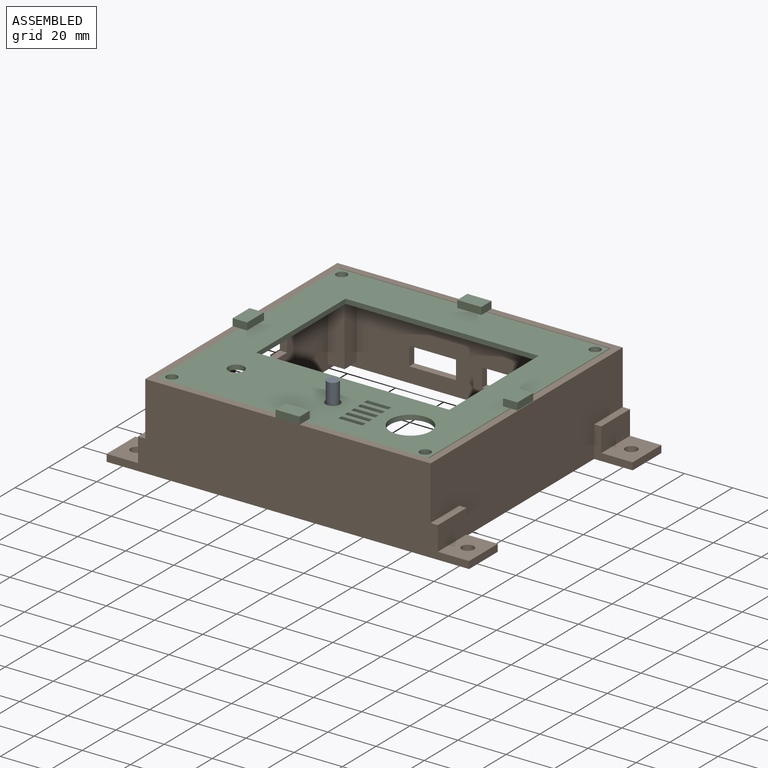
[diagram: assembled view]
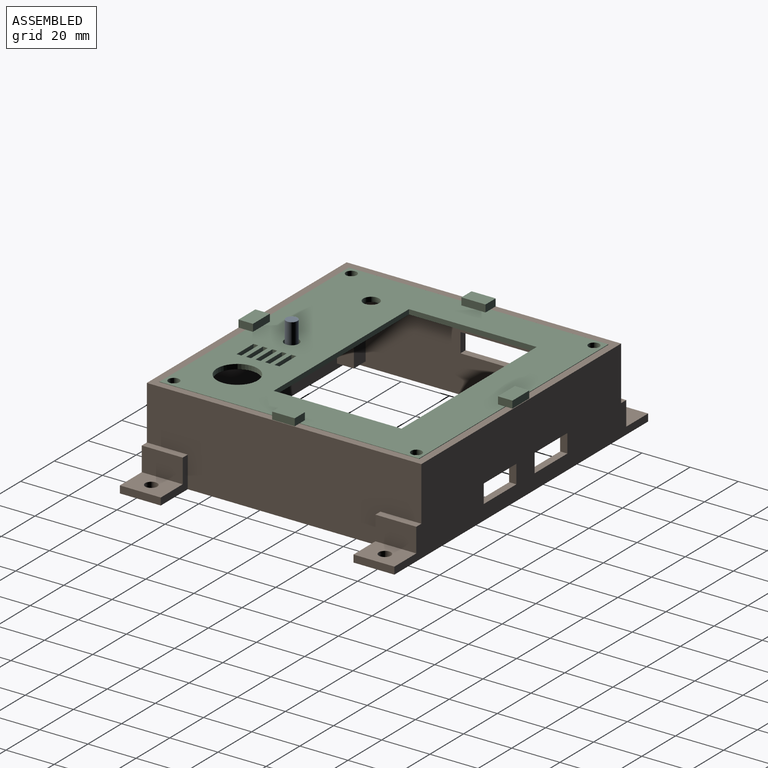
[diagram: assembled view, second angle]
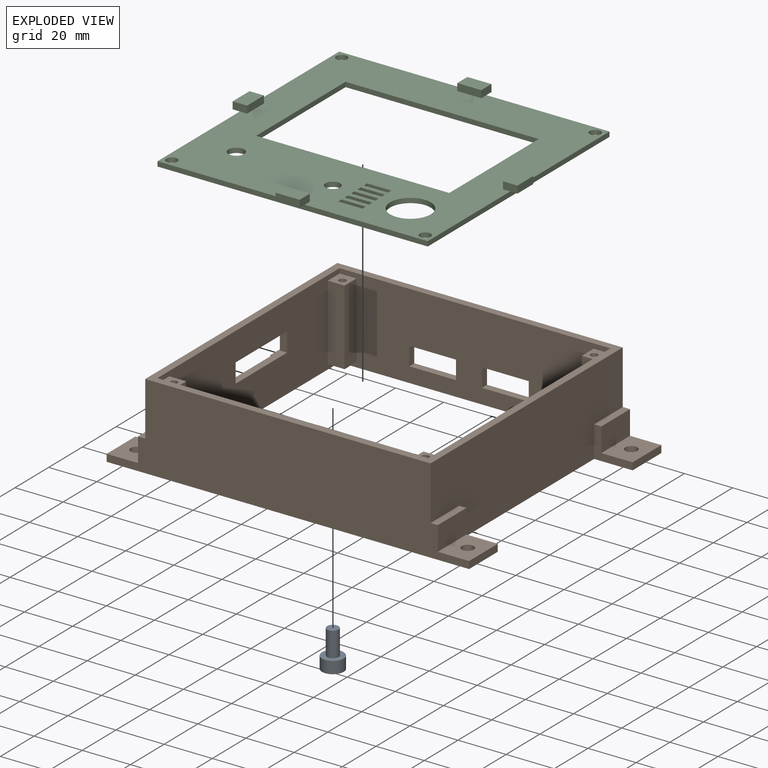
[diagram: exploded view]
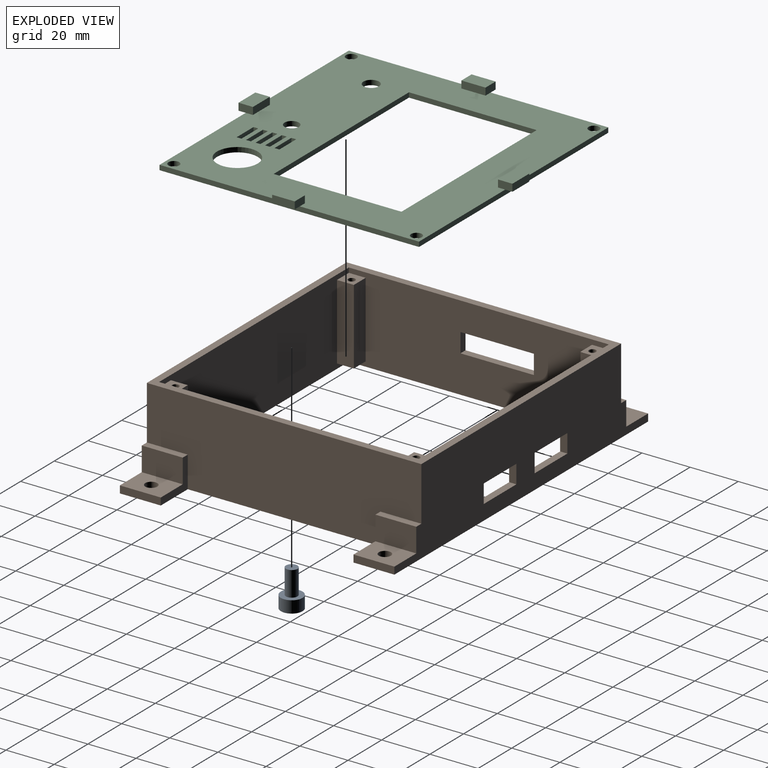
[diagram: exploded view, second angle]
ASSEMBLY  parts=3 mates=2
PART A: 7 faces, bbox 9x9x15.4 mm
  f0: cylinder r=2.4mm len=10.36mm, axis (0,0,-1), area 156.2mm2, adj f1,f4
  f1: plane 4.8x4.8mm, normal (0,0,1), area 18.1mm2, adj f0
  f2: cylinder r=4.5mm len=9mm, axis (0,0,1), area 141.4mm2, adj f3,f4
  f3: plane 9x9mm, normal (0,0,-1), area 35.3mm2, adj f2,f5
  f4: plane 9x9mm, normal (0,0,1), area 45.5mm2, adj f0,f2
  f5: cylinder r=3mm len=6mm, axis (0,0,-1), area 56.5mm2, adj f3,f6
  f6: plane 6x6mm, normal (0,0,-1), area 28.3mm2, adj f5
PART B: 66 faces, bbox 150.5x114x35.4 mm
  f0: plane 17x3mm, normal (1,0,0), area 51mm2, adj f1,f14,f57,f60
  f1: plane 150.5x114mm, normal (0,0,-1), area 2368.5mm2, adj f0,f5,f9,f10,f11,f12,f13,f14
  f2: plane 17x10mm, normal (1,0,0), area 170mm2, adj f3,f4,f15,f61
  f3: plane 17x3mm, normal (0,0,1), area 51mm2, adj f2,f9,f15,f61
  f4: plane 17x13mm, normal (0,0,1), area 201.4mm2, adj f2,f15,f56,f61,f64
  f5: plane 17x3mm, normal (-1,0,0), area 51mm2, adj f1,f8,f15,f59
  f6: plane 17x3mm, normal (0,0,1), area 51mm2, adj f7,f10,f15,f59
  f7: plane 17x10mm, normal (-1,0,0), area 170mm2, adj f6,f8,f15,f59
  f8: plane 17x13mm, normal (0,0,1), area 201.4mm2, adj f5,f7,f15,f59,f65
  f9: plane 114x35.36mm, normal (1,0,0), area 3589mm2, adj f1,f3,f14,f15,f17,f55,f60,f61
  f10: plane 114x35.36mm, normal (-1,0,0), area 3345mm2, adj f1,f6,f14,f15,f17,f38,f39,f40
  f11: plane 108x35.36mm, normal (1,0,0), area 3135.8mm2, adj f1,f12,f16,f17,f19,f20,f21,f31
  f12: plane 112.5x35.36mm, normal (0,-1,0), area 3240.2mm2, adj f1,f11,f13,f17,f18,f20,f21,f22
  f13: plane 108x35.36mm, normal (-1,0,0), area 3379.8mm2, adj f1,f12,f16,f17,f23,f24,f25,f27
  f14: plane 150.5x35.36mm, normal (0,1,0), area 4047.4mm2, adj f0,f1,f9,f10,f17,f42,f43,f44
  f15: plane 150.5x35.36mm, normal (0,-1,0), area 4346.2mm2, adj f1,f2,f3,f4,f5,f6,f7,f8
  f16: plane 112.5x35.36mm, normal (0,1,0), area 3539mm2, adj f1,f11,f13,f17,f26,f28,f29,f30
  f17: plane 118.5x114mm, normal (0,0,1), area 1359mm2, adj f9,f10,f11,f12,f13,f14,f15,f16
  f18: plane 31.36x7mm, normal (1,0,0), area 219.5mm2, adj f12,f19,f20,f21
  f19: plane 31.36x7mm, normal (0,-1,0), area 219.5mm2, adj f11,f18,f20,f21
  f20: plane 7x7mm, normal (0,0,-1), area 42.4mm2, adj f11,f12,f18,f19,f37
  f21: plane 7x7mm, normal (0,0,1), area 42.4mm2, adj f11,f12,f18,f19,f37
  f22: plane 31.36x7mm, normal (-1,0,0), area 219.5mm2, adj f12,f23,f24,f25
  f23: plane 31.36x7mm, normal (0,-1,0), area 219.5mm2, adj f13,f22,f24,f25
  f24: plane 7x7mm, normal (0,0,-1), area 42.4mm2, adj f12,f13,f22,f23,f36
  f25: plane 7x7mm, normal (0,0,1), area 42.4mm2, adj f12,f13,f22,f23,f36
  f26: plane 31.36x7mm, normal (-1,0,0), area 219.5mm2, adj f16,f27,f28,f29
  f27: plane 31.36x7mm, normal (0,1,0), area 219.5mm2, adj f13,f26,f28,f29
  f28: plane 7x7mm, normal (0,0,-1), area 42.4mm2, adj f13,f16,f26,f27,f35
  f29: plane 7x7mm, normal (0,0,1), area 42.4mm2, adj f13,f16,f26,f27,f35
  f30: plane 31.36x7mm, normal (1,0,0), area 219.5mm2, adj f16,f31,f32,f33
  f31: plane 31.36x7mm, normal (0,1,0), area 219.5mm2, adj f11,f30,f32,f33
  f32: plane 7x7mm, normal (0,0,-1), area 42.4mm2, adj f11,f16,f30,f31,f34
  f33: plane 7x7mm, normal (0,0,1), area 42.4mm2, adj f11,f16,f30,f31,f34
  f34: cylinder r=1.45mm len=31.36mm, axis (0,0,1), area 285.7mm2, adj f32,f33
  f35: cylinder r=1.45mm len=31.36mm, axis (0,0,1), area 285.7mm2, adj f28,f29
  f36: cylinder r=1.45mm len=31.36mm, axis (0,0,1), area 285.7mm2, adj f24,f25
  f37: cylinder r=1.45mm len=31.36mm, axis (0,0,1), area 285.7mm2, adj f20,f21
  f38: plane 30.51x3mm, normal (0,0,1), area 91.5mm2, adj f10,f11,f39,f40
  f39: plane 8x3mm, normal (0,-1,0), area 24mm2, adj f10,f11,f38,f41
  f40: plane 8x3mm, normal (0,1,0), area 24mm2, adj f10,f11,f38,f41
  f41: plane 30.51x3mm, normal (0,0,-1), area 91.5mm2, adj f10,f11,f39,f40
  f42: plane 7.7x3mm, normal (-1,0,0), area 23.1mm2, adj f12,f14,f43,f45
  f43: plane 19.4x3mm, normal (0,0,1), area 58.2mm2, adj f12,f14,f42,f44
  f44: plane 7.7x3mm, normal (1,0,0), area 23.1mm2, adj f12,f14,f43,f45
  f45: plane 19.4x3mm, normal (0,0,-1), area 58.2mm2, adj f12,f14,f42,f44
  f46: plane 7.7x3mm, normal (-1,0,0), area 23.1mm2, adj f12,f14,f47,f49
  f47: plane 19.4x3mm, normal (0,0,1), area 58.2mm2, adj f12,f14,f46,f48
  f48: plane 7.7x3mm, normal (1,0,0), area 23.1mm2, adj f12,f14,f47,f49
  f49: plane 19.4x3mm, normal (0,0,-1), area 58.2mm2, adj f12,f14,f46,f48
  f50: plane 17x3mm, normal (-1,0,0), area 51mm2, adj f1,f14,f53,f58
  f51: plane 17x3mm, normal (0,0,1), area 51mm2, adj f10,f14,f52,f58
  f52: plane 17x10mm, normal (-1,0,0), area 170mm2, adj f14,f51,f53,f58
  f53: plane 17x13mm, normal (0,0,1), area 201.4mm2, adj f14,f50,f52,f58,f62
  f54: plane 17x10mm, normal (1,0,0), area 170mm2, adj f14,f55,f57,f60
  f55: plane 17x3mm, normal (0,0,1), area 51mm2, adj f9,f14,f54,f60
  f56: plane 17x3mm, normal (1,0,0), area 51mm2, adj f1,f4,f15,f61
  f57: plane 17x13mm, normal (0,0,1), area 201.4mm2, adj f0,f14,f54,f60,f63
  f58: plane 16x13mm, normal (0,-1,0), area 78mm2, adj f1,f10,f50,f51,f52,f53
  f59: plane 16x13mm, normal (0,1,0), area 78mm2, adj f1,f5,f6,f7,f8,f10
  f60: plane 16x13mm, normal (0,-1,0), area 78mm2, adj f0,f1,f9,f54,f55,f57
  f61: plane 16x13mm, normal (0,1,0), area 78mm2, adj f1,f2,f3,f4,f9,f56
  f62: cylinder r=2.5mm len=5mm, axis (0,0,1), area 47.1mm2, adj f1,f53
  f63: cylinder r=2.5mm len=5mm, axis (0,0,1), area 47.1mm2, adj f1,f57
  f64: cylinder r=2.5mm len=5mm, axis (0,0,1), area 47.1mm2, adj f1,f4
  f65: cylinder r=2.5mm len=5mm, axis (0,0,1), area 47.1mm2, adj f1,f8
PART C: 61 faces, bbox 118.3x113.8x5 mm
  f0: plane 112.25x107.75mm, normal (0,0,1), area 7271.2mm2, adj f1,f2,f3,f4,f5,f6,f7,f8
  f1: plane 112.25x2mm, normal (0,1,0), area 224.5mm2, adj f0,f2,f35,f36,f54
  f2: plane 107.75x2mm, normal (-1,0,0), area 215.5mm2, adj f0,f1,f3,f36,f48
  f3: plane 112.25x2mm, normal (0,-1,0), area 224.5mm2, adj f0,f2,f35,f36,f55
  f4: plane 80.22x2mm, normal (0,1,0), area 160.4mm2, adj f0,f5,f22,f36
  f5: plane 53.05x2mm, normal (1,0,0), area 106.1mm2, adj f0,f4,f6,f36
  f6: plane 80.22x2mm, normal (0,-1,0), area 160.4mm2, adj f0,f5,f22,f36
  f7: plane 10x2mm, normal (0,1,0), area 20mm2, adj f0,f8,f23,f36
  f8: plane 2x2mm, normal (1,0,0), area 4mm2, adj f0,f7,f9,f36
  f9: plane 10x2mm, normal (0,-1,0), area 20mm2, adj f0,f8,f23,f36
  f10: plane 2x2mm, normal (1,0,0), area 4mm2, adj f0,f11,f24,f36
  f11: plane 10x2mm, normal (0,-1,0), area 20mm2, adj f0,f10,f12,f36
  f12: plane 2x2mm, normal (-1,0,0), area 4mm2, adj f0,f11,f24,f36
  f13: plane 2x2mm, normal (1,0,0), area 4mm2, adj f0,f14,f25,f36
  f14: plane 10x2mm, normal (0,-1,0), area 20mm2, adj f0,f13,f15,f36
  f15: plane 2x2mm, normal (-1,0,0), area 4mm2, adj f0,f14,f25,f36
  f16: plane 2x2mm, normal (1,0,0), area 4mm2, adj f0,f17,f26,f36
  f17: plane 10x2mm, normal (0,-1,0), area 20mm2, adj f0,f16,f18,f36
  f18: plane 2x2mm, normal (-1,0,0), area 4mm2, adj f0,f17,f26,f36
  f19: plane 2x2mm, normal (1,0,0), area 4mm2, adj f0,f20,f27,f36
  f20: plane 10x2mm, normal (0,-1,0), area 20mm2, adj f0,f19,f21,f36
  f21: plane 2x2mm, normal (-1,0,0), area 4mm2, adj f0,f20,f27,f36
  f22: plane 53.05x2mm, normal (-1,0,0), area 106.1mm2, adj f0,f4,f6,f36
  f23: plane 2x2mm, normal (-1,0,0), area 4mm2, adj f0,f7,f9,f36
  f24: plane 10x2mm, normal (0,1,0), area 20mm2, adj f0,f10,f12,f36
  f25: plane 10x2mm, normal (0,1,0), area 20mm2, adj f0,f13,f15,f36
  f26: plane 10x2mm, normal (0,1,0), area 20mm2, adj f0,f16,f18,f36
  f27: plane 10x2mm, normal (0,1,0), area 20mm2, adj f0,f19,f21,f36
  f28: cylinder r=2.25mm len=4.5mm, axis (0,0,-1), area 28.3mm2, adj f0,f36
  f29: cylinder r=2.25mm len=4.5mm, axis (0,0,-1), area 28.3mm2, adj f0,f36
  f30: cylinder r=2.25mm len=4.5mm, axis (0,0,-1), area 28.3mm2, adj f0,f36
  f31: cylinder r=2.25mm len=4.5mm, axis (0,0,-1), area 28.3mm2, adj f0,f36
  f32: cylinder r=8.45mm len=16.9mm, axis (0,0,-1), area 106.2mm2, adj f0,f36
  f33: cylinder r=3mm len=6mm, axis (0,0,-1), area 37.7mm2, adj f0,f36
  f34: cylinder r=3.28mm len=6.55mm, axis (0,0,-1), area 41.2mm2, adj f0,f36
  f35: plane 107.75x2mm, normal (1,0,0), area 215.5mm2, adj f0,f1,f3,f36,f37
  f36: plane 112.25x107.75mm, normal (0,0,-1), area 7389.4mm2, adj f1,f2,f3,f4,f5,f6,f7,f8
  f37: plane 9.38x3mm, normal (0,0,-1), area 28.1mm2, adj f35,f39,f40,f41
  f38: plane 9.38x3mm, normal (-1,0,0), area 28.1mm2, adj f0,f39,f41,f42
  f39: plane 6x3mm, normal (0,-1,0), area 18mm2, adj f0,f37,f38,f40,f42
  f40: plane 9.38x3mm, normal (1,0,0), area 28.1mm2, adj f37,f39,f41,f42
  f41: plane 6x3mm, normal (0,1,0), area 18mm2, adj f0,f37,f38,f40,f42
  f42: plane 9.38x6mm, normal (0,0,1), area 56.3mm2, adj f38,f39,f40,f41
  f43: plane 10x3mm, normal (-1,0,0), area 30mm2, adj f44,f46,f47,f48
  f44: plane 6x3mm, normal (0,-1,0), area 18mm2, adj f0,f43,f45,f47,f48
  f45: plane 10x3mm, normal (1,0,0), area 30mm2, adj f0,f44,f46,f47
  f46: plane 6x3mm, normal (0,1,0), area 18mm2, adj f0,f43,f45,f47,f48
  f47: plane 10x6mm, normal (0,0,1), area 60mm2, adj f43,f44,f45,f46
  f48: plane 10x3mm, normal (0,0,-1), area 30mm2, adj f2,f43,f44,f46
  f49: plane 6x3mm, normal (1,0,0), area 18mm2, adj f0,f50,f52,f53,f54
  f50: plane 10x3mm, normal (0,1,0), area 30mm2, adj f49,f51,f53,f54
  f51: plane 6x3mm, normal (-1,0,0), area 18mm2, adj f0,f50,f52,f53,f54
  f52: plane 10x3mm, normal (0,-1,0), area 30mm2, adj f0,f49,f51,f53
  f53: plane 10x6mm, normal (0,0,1), area 60mm2, adj f49,f50,f51,f52
  f54: plane 10x3mm, normal (0,0,-1), area 30mm2, adj f1,f49,f50,f51
  f55: plane 10x3mm, normal (0,0,-1), area 30mm2, adj f3,f56,f58,f59
  f56: plane 6x3mm, normal (1,0,0), area 18mm2, adj f0,f55,f57,f59,f60
  f57: plane 10x3mm, normal (0,1,0), area 30mm2, adj f0,f56,f58,f60
  f58: plane 6x3mm, normal (-1,0,0), area 18mm2, adj f0,f55,f57,f59,f60
  f59: plane 10x3mm, normal (0,-1,0), area 30mm2, adj f55,f56,f58,f60
  f60: plane 10x6mm, normal (0,0,1), area 60mm2, adj f56,f57,f58,f59
PLACE A t=(-44.29,-42.38,32.66)mm
PLACE B t=(-104.29,-60.68,-0.7)mm
PLACE C t=(-104.29,-60.68,32.66)mm
MATE parallel C.f0 <-> B.f17  axis (0,0,1) through (-104.29,-60.68,34.66)mm
MATE parallel A.f0 <-> C.f33  axis (0,0,1) through (-44.29,-42.38,32.66)mm
